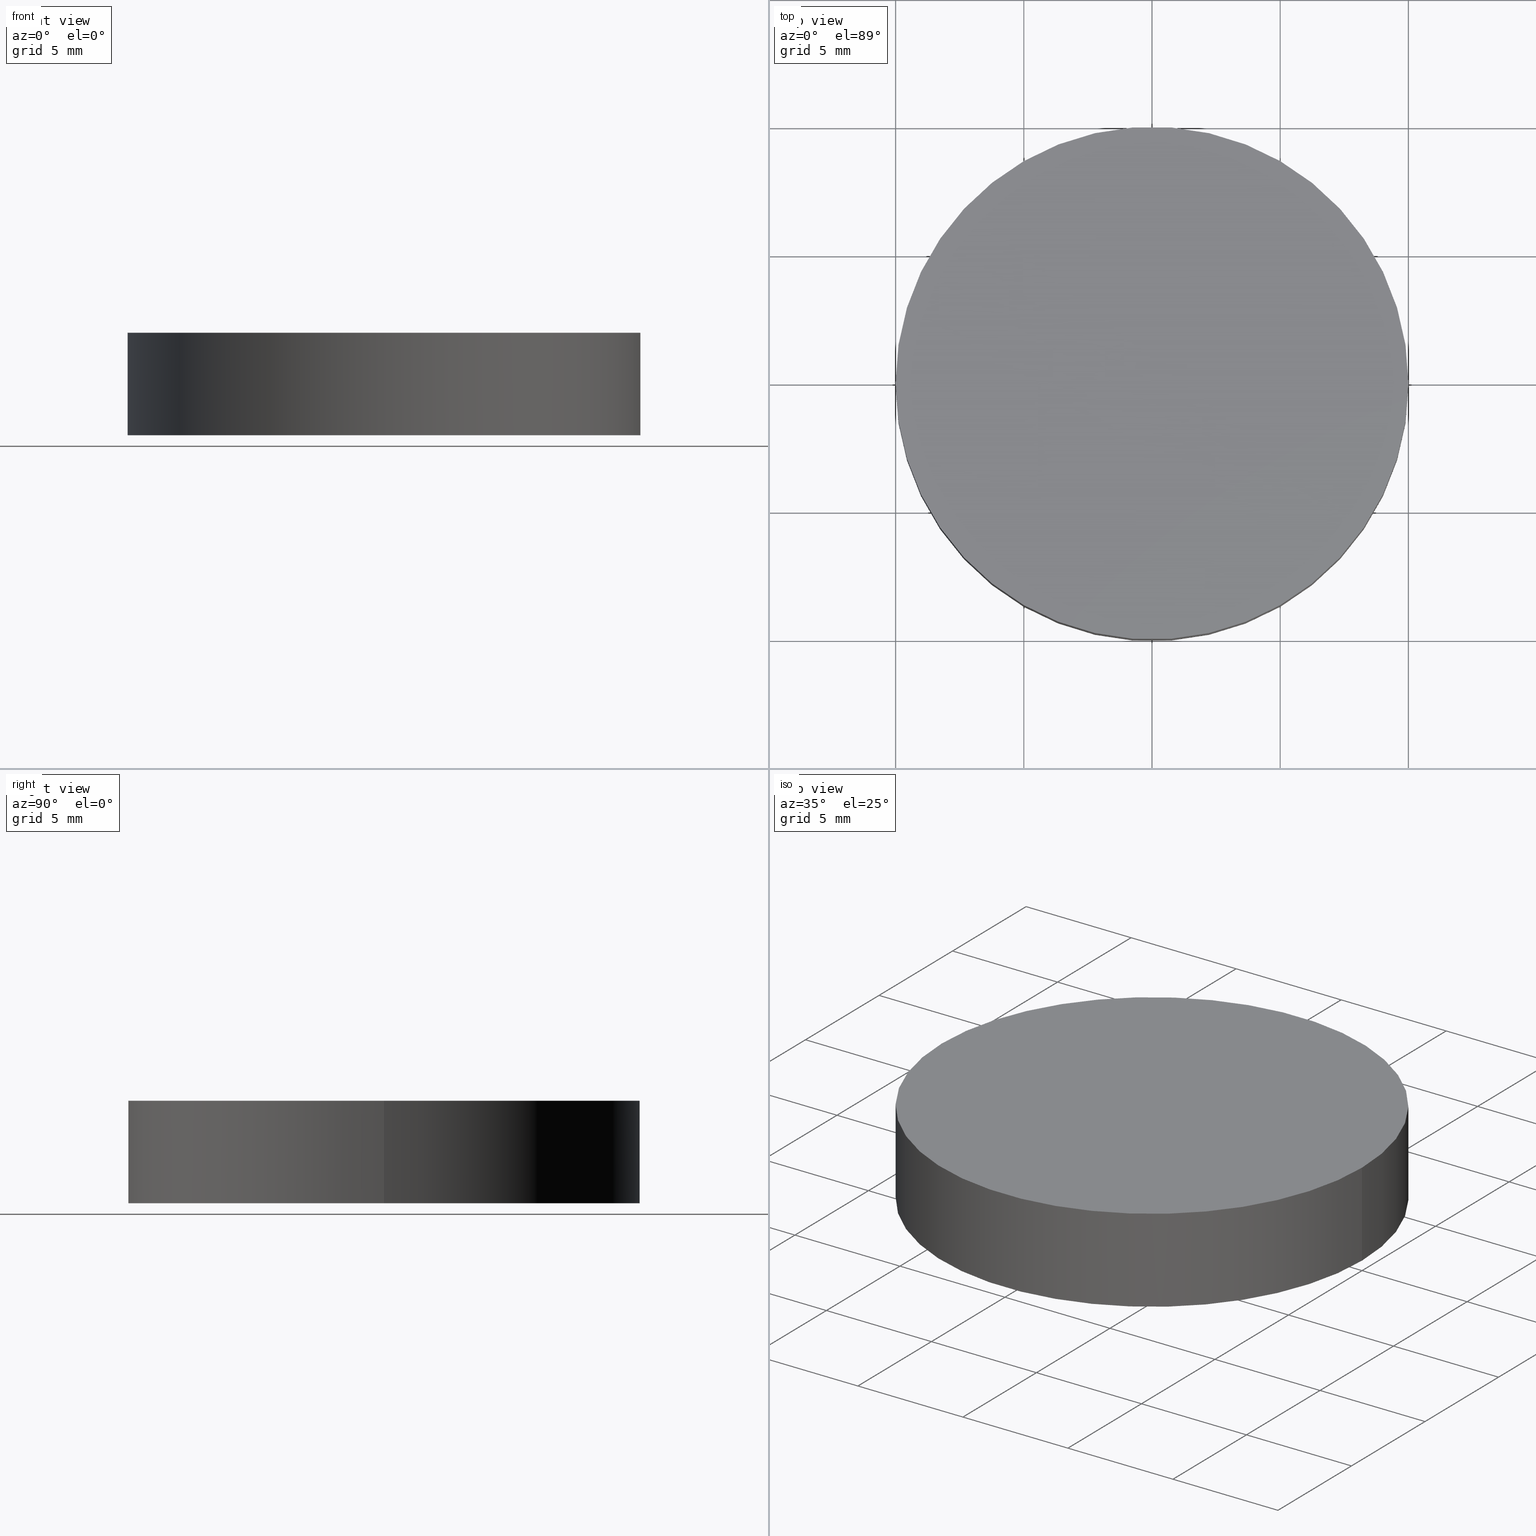
[diagram: canonical four-view strip — front | top / right | iso, engineering-drawing reading convention]
A machine part, canonical four-view strip (front | top / right | iso — engineering-drawing reading convention). The complete STEP part file that produces these views, byte-faithful:
ISO-10303-21;
HEADER;
FILE_DESCRIPTION (( 'STEP AP203' ),
    '1' );
FILE_NAME ('416004.STEP',
    '2019-08-21T06:44:39',
    ( '' ),
    ( '' ),
    'SwSTEP 2.0',
    'SolidWorks 2016',
    '' );
FILE_SCHEMA (( 'CONFIG_CONTROL_DESIGN' ));
ENDSEC;

DATA;
#1 = CIRCLE ( 'NONE', #236, 10.00000000000000000 ) ;
#2 = DIRECTION ( 'NONE',  ( -0.0000000000000000000, -0.0000000000000000000, -1.000000000000000000 ) ) ;
#3 = CARTESIAN_POINT ( 'NONE',  ( 10.00000000000000000, 1.224646799147353300E-015, 0.0000000000000000000 ) ) ;
#4 = CC_DESIGN_SECURITY_CLASSIFICATION ( #28, ( #35 ) ) ;
#5 = VERTEX_POINT ( 'NONE', #3 ) ;
#6 = PERSON_AND_ORGANIZATION_ROLE ( 'classification_officer' ) ;
#7 = DIRECTION ( 'NONE',  ( 1.000000000000000000, 0.0000000000000000000, 0.0000000000000000000 ) ) ;
#8 = APPLICATION_CONTEXT ( 'configuration controlled 3d designs of mechanical parts and assemblies' ) ;
#9 = APPROVAL_DATE_TIME ( #154, #228 ) ;
#10 = ORGANIZATION ( 'δָ��', 'δָ��', '' ) ;
#11 = MECHANICAL_CONTEXT ( 'NONE', #165, 'mechanical' ) ;
#12 = ADVANCED_FACE ( 'NONE', ( #128 ), #167, .T. ) ;
#13 = CC_DESIGN_DATE_AND_TIME_ASSIGNMENT ( #66, #104, ( #20 ) ) ;
#14 = MANIFOLD_SOLID_BREP ( '͹̨-����1', #205 ) ;
#15 = COORDINATED_UNIVERSAL_TIME_OFFSET ( 8, 0, .AHEAD. ) ;
#16 = CC_DESIGN_APPROVAL ( #228, ( #20 ) ) ;
#17 = PERSON_AND_ORGANIZATION ( #237, #10 ) ;
#18 = VECTOR ( 'NONE', #138, 1000.000000000000000 ) ;
#19 = APPROVAL_PERSON_ORGANIZATION ( #96, #209, #182 ) ;
#20 = PRODUCT_DEFINITION ( 'δ֪', '', #112, #92 ) ;
#21 = CIRCLE ( 'NONE', #32, 10.00000000000000000 ) ;
#22 = PLANE ( 'NONE',  #124 ) ;
#23 = DIRECTION ( 'NONE',  ( -0.0000000000000000000, -0.0000000000000000000, -1.000000000000000000 ) ) ;
#24 = CC_DESIGN_PERSON_AND_ORGANIZATION_ASSIGNMENT ( #192, #6, ( #75 ) ) ;
#25 = COORDINATED_UNIVERSAL_TIME_OFFSET ( 8, 0, .AHEAD. ) ;
#26 = DIRECTION ( 'NONE',  ( 0.0000000000000000000, 0.0000000000000000000, 1.000000000000000000 ) ) ;
#27 = APPROVAL_ROLE ( '' ) ;
#28 = SECURITY_CLASSIFICATION ( '', '', #223 ) ;
#29 = DATE_TIME_ROLE ( 'creation_date' ) ;
#30 = PERSON_AND_ORGANIZATION ( #237, #10 ) ;
#31 = CARTESIAN_POINT ( 'NONE',  ( 0.0000000000000000000, 0.0000000000000000000, 0.0000000000000000000 ) ) ;
#32 = AXIS2_PLACEMENT_3D ( 'NONE', #199, #64, #86 ) ;
#33 = LOCAL_TIME ( 14, 44, 39.00000000000000000, #185 ) ;
#34 = UNCERTAINTY_MEASURE_WITH_UNIT (LENGTH_MEASURE( 1.000000000000000100E-005 ), #142, 'distance_accuracy_value', 'NONE');
#35 = PRODUCT_DEFINITION_FORMATION_WITH_SPECIFIED_SOURCE ( '�κ�', '', #177, .NOT_KNOWN. ) ;
#36 = ORIENTED_EDGE ( 'NONE', *, *, #119, .T. ) ;
#37 = CC_DESIGN_PERSON_AND_ORGANIZATION_ASSIGNMENT ( #188, #180, ( #35 ) ) ;
#38 = PRODUCT_DEFINITION_SHAPE ( 'NONE', 'NONE',  #20 ) ;
#39 = CC_DESIGN_PERSON_AND_ORGANIZATION_ASSIGNMENT ( #17, #219, ( #112 ) ) ;
#40 = DIRECTION ( 'NONE',  ( 0.0000000000000000000, 0.0000000000000000000, 1.000000000000000000 ) ) ;
#41 = DATE_AND_TIME ( #149, #57 ) ;
#42 = ORIENTED_EDGE ( 'NONE', *, *, #119, .F. ) ;
#43 = CARTESIAN_POINT ( 'NONE',  ( -10.00000000000000000, 0.0000000000000000000, 0.0000000000000000000 ) ) ;
#44 = EDGE_CURVE ( 'NONE', #118, #229, #153, .T. ) ;
#45 = APPLICATION_PROTOCOL_DEFINITION ( 'international standard', 'config_control_design', 1994, #126 ) ;
#46 = MECHANICAL_CONTEXT ( 'NONE', #8, 'mechanical' ) ;
#47 = CARTESIAN_POINT ( 'NONE',  ( 0.0000000000000000000, 0.0000000000000000000, 0.0000000000000000000 ) ) ;
#48 = CARTESIAN_POINT ( 'NONE',  ( 0.0000000000000000000, 0.0000000000000000000, 4.000000000000000000 ) ) ;
#49 = PERSON_AND_ORGANIZATION ( #237, #10 ) ;
#50 = ORIENTED_EDGE ( 'NONE', *, *, #143, .T. ) ;
#51 = ADVANCED_FACE ( 'NONE', ( #77 ), #22, .T. ) ;
#52 = DATE_AND_TIME ( #160, #152 ) ;
#53 = CC_DESIGN_APPROVAL ( #98, ( #75 ) ) ;
#54 = CC_DESIGN_PERSON_AND_ORGANIZATION_ASSIGNMENT ( #74, #197, ( #35 ) ) ;
#55 = CALENDAR_DATE ( 2019, 21, 8 ) ;
#56 = EDGE_LOOP ( 'NONE', ( #50, #105 ) ) ;
#57 = LOCAL_TIME ( 14, 44, 39.00000000000000000, #15 ) ;
#58 = DATE_AND_TIME ( #247, #251 ) ;
#59 = EDGE_LOOP ( 'NONE', ( #202, #190 ) ) ;
#60 = CC_DESIGN_DATE_AND_TIME_ASSIGNMENT ( #41, #140, ( #75 ) ) ;
#61 = APPROVAL_ROLE ( '' ) ;
#62 = DIRECTION ( 'NONE',  ( 1.000000000000000000, 0.0000000000000000000, -0.0000000000000000000 ) ) ;
#63 = DIRECTION ( 'NONE',  ( 0.0000000000000000000, 0.0000000000000000000, 1.000000000000000000 ) ) ;
#64 = DIRECTION ( 'NONE',  ( 0.0000000000000000000, 0.0000000000000000000, 1.000000000000000000 ) ) ;
#65 = PERSON_AND_ORGANIZATION_ROLE ( 'creator' ) ;
#66 = DATE_AND_TIME ( #146, #232 ) ;
#67 = DATE_AND_TIME ( #120, #85 ) ;
#68 = APPROVAL_STATUS ( 'not_yet_approved' ) ;
#69 = CC_DESIGN_PERSON_AND_ORGANIZATION_ASSIGNMENT ( #95, #218, ( #20 ) ) ;
#70 = APPROVAL_STATUS ( 'not_yet_approved' ) ;
#71 = EDGE_CURVE ( 'NONE', #5, #229, #97, .T. ) ;
#72 = AXIS2_PLACEMENT_3D ( 'NONE', #194, #23, #159 ) ;
#73 = COORDINATED_UNIVERSAL_TIME_OFFSET ( 8, 0, .AHEAD. ) ;
#74 = PERSON_AND_ORGANIZATION ( #237, #10 ) ;
#75 = SECURITY_CLASSIFICATION ( '', '', #106 ) ;
#76 = COORDINATED_UNIVERSAL_TIME_OFFSET ( 8, 0, .AHEAD. ) ;
#77 = FACE_OUTER_BOUND ( 'NONE', #56, .T. ) ;
#78 = CIRCLE ( 'NONE', #100, 10.00000000000000000 ) ;
#79 = CC_DESIGN_APPROVAL ( #209, ( #116 ) ) ;
#80 = CC_DESIGN_APPROVAL ( #94, ( #112 ) ) ;
#81 = DIRECTION ( 'NONE',  ( 0.0000000000000000000, 0.0000000000000000000, 1.000000000000000000 ) ) ;
#82 = APPROVAL_STATUS ( 'not_yet_approved' ) ;
#83 = APPROVAL ( #70, 'δָ��' ) ;
#84 = PERSON_AND_ORGANIZATION_ROLE ( 'creator' ) ;
#85 = LOCAL_TIME ( 14, 44, 39.00000000000000000, #174 ) ;
#86 = DIRECTION ( 'NONE',  ( 1.000000000000000000, 0.0000000000000000000, 0.0000000000000000000 ) ) ;
#87 = APPROVAL_ROLE ( '' ) ;
#88 = APPLICATION_PROTOCOL_DEFINITION ( 'international standard', 'config_control_design', 1994, #8 ) ;
#89 = APPROVAL_PERSON_ORGANIZATION ( #49, #248, #238 ) ;
#90 = ORIENTED_EDGE ( 'NONE', *, *, #44, .T. ) ;
#91 = PRODUCT_RELATED_PRODUCT_CATEGORY ( 'detail', '', ( #217 ) ) ;
#92 = DESIGN_CONTEXT ( 'detailed design', #126, 'design' ) ;
#93 = APPROVAL_PERSON_ORGANIZATION ( #198, #98, #27 ) ;
#94 = APPROVAL ( #178, 'δָ��' ) ;
#95 = PERSON_AND_ORGANIZATION ( #237, #10 ) ;
#96 = PERSON_AND_ORGANIZATION ( #237, #10 ) ;
#97 = CIRCLE ( 'NONE', #233, 10.00000000000000000 ) ;
#98 = APPROVAL ( #241, 'δָ��' ) ;
#99 = CARTESIAN_POINT ( 'NONE',  ( -10.00000000000000000, 0.0000000000000000000, 4.000000000000000000 ) ) ;
#100 = AXIS2_PLACEMENT_3D ( 'NONE', #48, #63, #163 ) ;
#101 = COORDINATED_UNIVERSAL_TIME_OFFSET ( 8, 0, .AHEAD. ) ;
#102 = ORIENTED_EDGE ( 'NONE', *, *, #71, .T. ) ;
#103 = DIRECTION ( 'NONE',  ( 1.000000000000000000, 0.0000000000000000000, 0.0000000000000000000 ) ) ;
#104 = DATE_TIME_ROLE ( 'creation_date' ) ;
#105 = ORIENTED_EDGE ( 'NONE', *, *, #186, .T. ) ;
#106 = SECURITY_CLASSIFICATION_LEVEL ( 'unclassified' ) ;
#107 =( NAMED_UNIT ( * ) PLANE_ANGLE_UNIT ( ) SI_UNIT ( $, .RADIAN. ) );
#108 = DIRECTION ( 'NONE',  ( 0.0000000000000000000, 0.0000000000000000000, 1.000000000000000000 ) ) ;
#109 = PERSON_AND_ORGANIZATION_ROLE ( 'classification_officer' ) ;
#110 = APPLICATION_PROTOCOL_DEFINITION ( 'international standard', 'config_control_design', 1994, #165 ) ;
#111 = PERSON_AND_ORGANIZATION ( #237, #10 ) ;
#112 = PRODUCT_DEFINITION_FORMATION_WITH_SPECIFIED_SOURCE ( '�κ�', '', #217, .NOT_KNOWN. ) ;
#113 = ADVANCED_FACE ( 'NONE', ( #170 ), #132, .T. ) ;
#114 = CALENDAR_DATE ( 2019, 21, 8 ) ;
#115 = ORIENTED_EDGE ( 'NONE', *, *, #44, .F. ) ;
#116 = PRODUCT_DEFINITION ( 'δ֪', '', #35, #231 ) ;
#117 = DATE_AND_TIME ( #169, #227 ) ;
#118 = VERTEX_POINT ( 'NONE', #214 ) ;
#119 = EDGE_CURVE ( 'NONE', #208, #5, #148, .T. ) ;
#120 = CALENDAR_DATE ( 2019, 21, 8 ) ;
#121 = DIRECTION ( 'NONE',  ( -1.000000000000000000, 0.0000000000000000000, 0.0000000000000000000 ) ) ;
#122 =( NAMED_UNIT ( * ) SI_UNIT ( $, .STERADIAN. ) SOLID_ANGLE_UNIT ( ) );
#123 = CARTESIAN_POINT ( 'NONE',  ( 0.0000000000000000000, 0.0000000000000000000, 0.0000000000000000000 ) ) ;
#124 = AXIS2_PLACEMENT_3D ( 'NONE', #157, #40, #173 ) ;
#125 = APPROVAL_DATE_TIME ( #58, #83 ) ;
#126 = APPLICATION_CONTEXT ( 'configuration controlled 3d designs of mechanical parts and assemblies' ) ;
#127 = CALENDAR_DATE ( 2019, 21, 8 ) ;
#128 = FACE_OUTER_BOUND ( 'NONE', #156, .T. ) ;
#129 = AXIS2_PLACEMENT_3D ( 'NONE', #123, #26, #166 ) ;
#130 = DATE_AND_TIME ( #55, #212 ) ;
#131 = PRODUCT_RELATED_PRODUCT_CATEGORY ( 'detail', '', ( #177 ) ) ;
#132 = CYLINDRICAL_SURFACE ( 'NONE', #72, 10.00000000000000000 ) ;
#133 = EDGE_LOOP ( 'NONE', ( #162, #36, #102, #115 ) ) ;
#134 = PRODUCT_DEFINITION_SHAPE ( 'NONE', 'NONE',  #116 ) ;
#135 = PERSON_AND_ORGANIZATION ( #237, #10 ) ;
#136 = CALENDAR_DATE ( 2019, 21, 8 ) ;
#137 = ORIENTED_EDGE ( 'NONE', *, *, #143, .F. ) ;
#138 = DIRECTION ( 'NONE',  ( -0.0000000000000000000, -0.0000000000000000000, -1.000000000000000000 ) ) ;
#139 = DATE_TIME_ROLE ( 'classification_date' ) ;
#140 = DATE_TIME_ROLE ( 'classification_date' ) ;
#141 = COORDINATED_UNIVERSAL_TIME_OFFSET ( 8, 0, .AHEAD. ) ;
#142 =( LENGTH_UNIT ( ) NAMED_UNIT ( * ) SI_UNIT ( .MILLI., .METRE. ) );
#143 = EDGE_CURVE ( 'NONE', #118, #208, #21, .T. ) ;
#144 = APPROVAL_STATUS ( 'not_yet_approved' ) ;
#145 = DIRECTION ( 'NONE',  ( 1.000000000000000000, 0.0000000000000000000, 0.0000000000000000000 ) ) ;
#146 = CALENDAR_DATE ( 2019, 21, 8 ) ;
#147 = CC_DESIGN_PERSON_AND_ORGANIZATION_ASSIGNMENT ( #30, #84, ( #112 ) ) ;
#148 = LINE ( 'NONE', #196, #18 ) ;
#149 = CALENDAR_DATE ( 2019, 21, 8 ) ;
#150 = DATE_AND_TIME ( #127, #33 ) ;
#151 = ORIENTED_EDGE ( 'NONE', *, *, #210, .T. ) ;
#152 = LOCAL_TIME ( 14, 44, 39.00000000000000000, #141 ) ;
#153 = LINE ( 'NONE', #99, #252 ) ;
#154 = DATE_AND_TIME ( #136, #189 ) ;
#155 = APPROVAL_DATE_TIME ( #117, #248 ) ;
#156 = EDGE_LOOP ( 'NONE', ( #42, #137, #90, #151 ) ) ;
#157 = CARTESIAN_POINT ( 'NONE',  ( 0.0000000000000000000, 0.0000000000000000000, 4.000000000000000000 ) ) ;
#158 = CC_DESIGN_SECURITY_CLASSIFICATION ( #75, ( #112 ) ) ;
#159 = DIRECTION ( 'NONE',  ( -1.000000000000000000, 0.0000000000000000000, 0.0000000000000000000 ) ) ;
#160 = CALENDAR_DATE ( 2019, 21, 8 ) ;
#161 = CARTESIAN_POINT ( 'NONE',  ( 0.0000000000000000000, 0.0000000000000000000, 4.000000000000000000 ) ) ;
#162 = ORIENTED_EDGE ( 'NONE', *, *, #186, .F. ) ;
#163 = DIRECTION ( 'NONE',  ( 1.000000000000000000, 0.0000000000000000000, 0.0000000000000000000 ) ) ;
#164 = CC_DESIGN_DATE_AND_TIME_ASSIGNMENT ( #150, #29, ( #116 ) ) ;
#165 = APPLICATION_CONTEXT ( 'configuration controlled 3d designs of mechanical parts and assemblies' ) ;
#166 = DIRECTION ( 'NONE',  ( 1.000000000000000000, 0.0000000000000000000, 0.0000000000000000000 ) ) ;
#167 = CYLINDRICAL_SURFACE ( 'NONE', #245, 10.00000000000000000 ) ;
#168 = COORDINATED_UNIVERSAL_TIME_OFFSET ( 8, 0, .AHEAD. ) ;
#169 = CALENDAR_DATE ( 2019, 21, 8 ) ;
#170 = FACE_OUTER_BOUND ( 'NONE', #133, .T. ) ;
#171 = ADVANCED_BREP_SHAPE_REPRESENTATION ( '416004', ( #14, #184 ), #204 ) ;
#172 = APPROVAL_PERSON_ORGANIZATION ( #207, #83, #87 ) ;
#173 = DIRECTION ( 'NONE',  ( 1.000000000000000000, 0.0000000000000000000, -0.0000000000000000000 ) ) ;
#174 = COORDINATED_UNIVERSAL_TIME_OFFSET ( 8, 0, .AHEAD. ) ;
#175 = CARTESIAN_POINT ( 'NONE',  ( 0.0000000000000000000, 0.0000000000000000000, 0.0000000000000000000 ) ) ;
#176 = CC_DESIGN_APPROVAL ( #83, ( #35 ) ) ;
#177 = PRODUCT ( '416004', '416004', '', ( #11 ) ) ;
#178 = APPROVAL_STATUS ( 'not_yet_approved' ) ;
#179 = SHAPE_DEFINITION_REPRESENTATION ( #38, #171 ) ;
#180 = PERSON_AND_ORGANIZATION_ROLE ( 'creator' ) ;
#181 = ADVANCED_FACE ( 'NONE', ( #215 ), #222, .F. ) ;
#182 = APPROVAL_ROLE ( '' ) ;
#183 = PERSON_AND_ORGANIZATION_ROLE ( 'design_owner' ) ;
#184 = AXIS2_PLACEMENT_3D ( 'NONE', #47, #221, #145 ) ;
#185 = COORDINATED_UNIVERSAL_TIME_OFFSET ( 8, 0, .AHEAD. ) ;
#186 = EDGE_CURVE ( 'NONE', #208, #118, #78, .T. ) ;
#187 = CC_DESIGN_PERSON_AND_ORGANIZATION_ASSIGNMENT ( #235, #183, ( #177 ) ) ;
#188 = PERSON_AND_ORGANIZATION ( #237, #10 ) ;
#189 = LOCAL_TIME ( 14, 44, 39.00000000000000000, #101 ) ;
#190 = ORIENTED_EDGE ( 'NONE', *, *, #71, .F. ) ;
#191 = APPROVAL_PERSON_ORGANIZATION ( #250, #94, #61 ) ;
#192 = PERSON_AND_ORGANIZATION ( #237, #10 ) ;
#193 = PERSON_AND_ORGANIZATION ( #237, #10 ) ;
#194 = CARTESIAN_POINT ( 'NONE',  ( 0.0000000000000000000, 0.0000000000000000000, 4.000000000000000000 ) ) ;
#195 = CC_DESIGN_APPROVAL ( #248, ( #28 ) ) ;
#196 = CARTESIAN_POINT ( 'NONE',  ( 10.00000000000000000, 1.224646799147353300E-015, 4.000000000000000000 ) ) ;
#197 = PERSON_AND_ORGANIZATION_ROLE ( 'design_supplier' ) ;
#198 = PERSON_AND_ORGANIZATION ( #237, #10 ) ;
#199 = CARTESIAN_POINT ( 'NONE',  ( 0.0000000000000000000, 0.0000000000000000000, 4.000000000000000000 ) ) ;
#200 = DIRECTION ( 'NONE',  ( 0.0000000000000000000, 0.0000000000000000000, 1.000000000000000000 ) ) ;
#201 = APPROVAL_PERSON_ORGANIZATION ( #193, #228, #239 ) ;
#202 = ORIENTED_EDGE ( 'NONE', *, *, #210, .F. ) ;
#203 = CC_DESIGN_PERSON_AND_ORGANIZATION_ASSIGNMENT ( #240, #65, ( #116 ) ) ;
#204 =( GEOMETRIC_REPRESENTATION_CONTEXT ( 3 ) GLOBAL_UNCERTAINTY_ASSIGNED_CONTEXT ( ( #34 ) ) GLOBAL_UNIT_ASSIGNED_CONTEXT ( ( #142, #107, #122 ) ) REPRESENTATION_CONTEXT ( 'NONE', 'WORKASPACE' ) );
#205 = CLOSED_SHELL ( 'NONE', ( #113, #12, #51, #181 ) ) ;
#206 = LOCAL_TIME ( 14, 44, 39.00000000000000000, #73 ) ;
#207 = PERSON_AND_ORGANIZATION ( #237, #10 ) ;
#208 = VERTEX_POINT ( 'NONE', #220 ) ;
#209 = APPROVAL ( #144, 'δָ��' ) ;
#210 = EDGE_CURVE ( 'NONE', #229, #5, #1, .T. ) ;
#211 = APPROVAL_DATE_TIME ( #246, #98 ) ;
#212 = LOCAL_TIME ( 14, 44, 39.00000000000000000, #25 ) ;
#213 = DIRECTION ( 'NONE',  ( -0.0000000000000000000, -0.0000000000000000000, -1.000000000000000000 ) ) ;
#214 = CARTESIAN_POINT ( 'NONE',  ( -10.00000000000000000, 0.0000000000000000000, 4.000000000000000000 ) ) ;
#215 = FACE_OUTER_BOUND ( 'NONE', #59, .T. ) ;
#216 = CC_DESIGN_PERSON_AND_ORGANIZATION_ASSIGNMENT ( #135, #109, ( #28 ) ) ;
#217 = PRODUCT ( '416004', '416004', '', ( #46 ) ) ;
#218 = PERSON_AND_ORGANIZATION_ROLE ( 'creator' ) ;
#219 = PERSON_AND_ORGANIZATION_ROLE ( 'design_supplier' ) ;
#220 = CARTESIAN_POINT ( 'NONE',  ( 10.00000000000000000, 1.224646799147353300E-015, 4.000000000000000000 ) ) ;
#221 = DIRECTION ( 'NONE',  ( 0.0000000000000000000, 0.0000000000000000000, 1.000000000000000000 ) ) ;
#222 = PLANE ( 'NONE',  #249 ) ;
#223 = SECURITY_CLASSIFICATION_LEVEL ( 'unclassified' ) ;
#224 = COORDINATED_UNIVERSAL_TIME_OFFSET ( 8, 0, .AHEAD. ) ;
#225 = APPROVAL_DATE_TIME ( #130, #209 ) ;
#226 = APPLICATION_CONTEXT ( 'configuration controlled 3d designs of mechanical parts and assemblies' ) ;
#227 = LOCAL_TIME ( 14, 44, 39.00000000000000000, #76 ) ;
#228 = APPROVAL ( #82, 'δָ��' ) ;
#229 = VERTEX_POINT ( 'NONE', #43 ) ;
#230 = CC_DESIGN_PERSON_AND_ORGANIZATION_ASSIGNMENT ( #111, #244, ( #217 ) ) ;
#231 = DESIGN_CONTEXT ( 'detailed design', #226, 'design' ) ;
#232 = LOCAL_TIME ( 14, 44, 39.00000000000000000, #224 ) ;
#233 = AXIS2_PLACEMENT_3D ( 'NONE', #175, #81, #103 ) ;
#234 = CC_DESIGN_DATE_AND_TIME_ASSIGNMENT ( #67, #139, ( #28 ) ) ;
#235 = PERSON_AND_ORGANIZATION ( #237, #10 ) ;
#236 = AXIS2_PLACEMENT_3D ( 'NONE', #31, #200, #7 ) ;
#237 = PERSON ( 'δָ��', 'δָ��', 'δָ��', ('δָ��'), ('δָ��'), ('δָ��') ) ;
#238 = APPROVAL_ROLE ( '' ) ;
#239 = APPROVAL_ROLE ( '' ) ;
#240 = PERSON_AND_ORGANIZATION ( #237, #10 ) ;
#241 = APPROVAL_STATUS ( 'not_yet_approved' ) ;
#242 = CARTESIAN_POINT ( 'NONE',  ( 0.0000000000000000000, 0.0000000000000000000, 0.0000000000000000000 ) ) ;
#243 = APPLICATION_PROTOCOL_DEFINITION ( 'international standard', 'config_control_design', 1994, #226 ) ;
#244 = PERSON_AND_ORGANIZATION_ROLE ( 'design_owner' ) ;
#245 = AXIS2_PLACEMENT_3D ( 'NONE', #161, #213, #121 ) ;
#246 = DATE_AND_TIME ( #114, #206 ) ;
#247 = CALENDAR_DATE ( 2019, 21, 8 ) ;
#248 = APPROVAL ( #68, 'δָ��' ) ;
#249 = AXIS2_PLACEMENT_3D ( 'NONE', #242, #108, #62 ) ;
#250 = PERSON_AND_ORGANIZATION ( #237, #10 ) ;
#251 = LOCAL_TIME ( 14, 44, 39.00000000000000000, #168 ) ;
#252 = VECTOR ( 'NONE', #2, 1000.000000000000000 ) ;
#253 = APPROVAL_DATE_TIME ( #52, #94 ) ;
ENDSEC;
END-ISO-10303-21;
